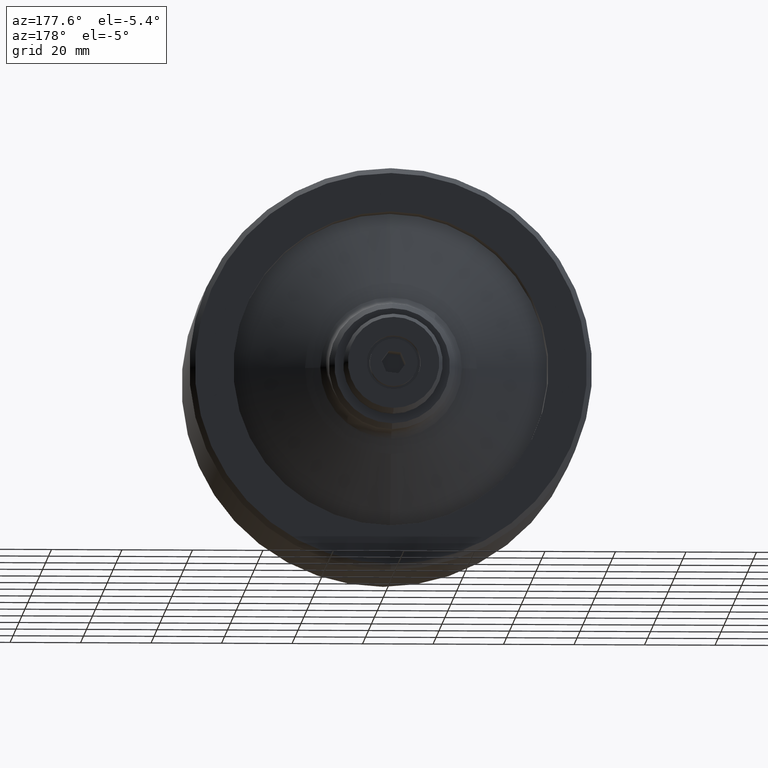
[diagram: clean part render]
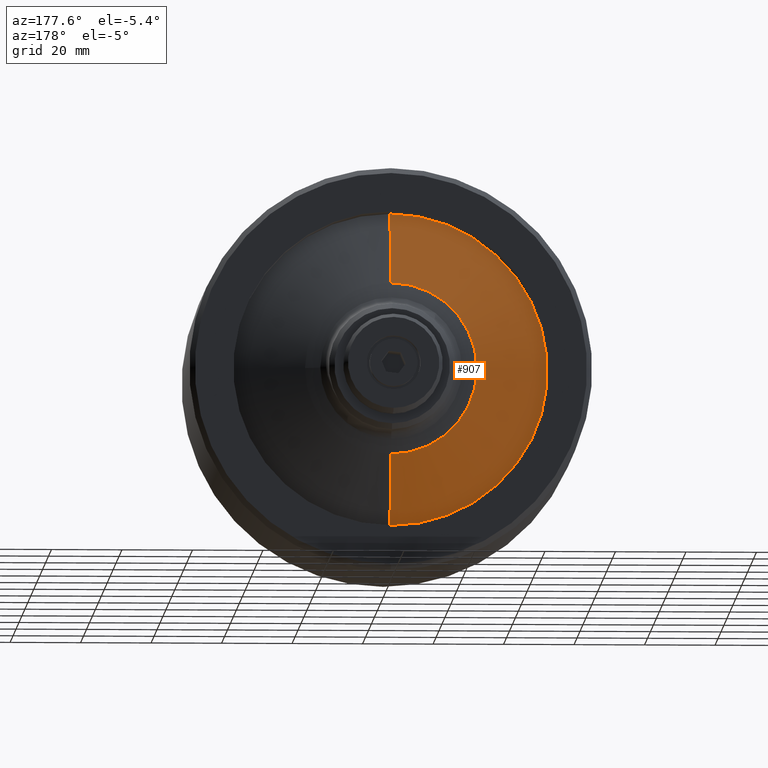
[diagram: same view with one face highlighted and labeled with its STEP entity id]
A machine part, auxiliary view. The second image highlights one B-rep face of the part: STEP entity #907.
In plain terms, the highlighted conical surface has half-angle 69.916 deg.
Its self-contained STEP definition (entity closure, byte-faithful):
#44 = CIRCLE ( 'NONE', #57, 0.9600000000000014100 ) ;
#52 = AXIS2_PLACEMENT_3D ( 'NONE', #1283, #1285, #1286 ) ;
#53 = CIRCLE ( 'NONE', #52, 0.9600000000000014100 ) ;
#57 = AXIS2_PLACEMENT_3D ( 'NONE', #1296, #1297, #1298 ) ;
#60 = AXIS2_PLACEMENT_3D ( 'NONE', #1409, #1410, #1411 ) ;
#95 = CIRCLE ( 'NONE', #60, 1.759875172363767800 ) ;
#232 = AXIS2_PLACEMENT_3D ( 'NONE', #1803, #1804, #1805 ) ;
#233 = CONICAL_SURFACE ( 'NONE', #232, 1.759875172363767800, 1.220263574788735600 ) ;
#415 = EDGE_CURVE ( 'NONE', #2543, #2540, #2739, .T. ) ;
#490 = EDGE_CURVE ( 'NONE', #2544, #2541, #2775, .T. ) ;
#538 = EDGE_CURVE ( 'NONE', #2543, #2562, #53, .T. ) ;
#547 = EDGE_CURVE ( 'NONE', #2562, #2544, #44, .T. ) ;
#609 = EDGE_CURVE ( 'NONE', #2540, #2541, #95, .T. ) ;
#697 = VECTOR ( 'NONE', #952, 39.37007874015748900 ) ;
#744 = VECTOR ( 'NONE', #1103, 39.37007874015748900 ) ;
#907 = ADVANCED_FACE ( 'NONE', ( #2896 ), #233, .T. ) ;
#951 = CARTESIAN_POINT ( 'NONE',  ( 2.155225496734184700E-016, 4.122539759987081900, 1.759875172363767800 ) ) ;
#952 = DIRECTION ( 'NONE',  ( 1.150175904890944400E-016, -0.3433982114676477100, 0.9391899000526042800 ) ) ;
#1102 = CARTESIAN_POINT ( 'NONE',  ( 0.0000000000000000000, 4.122539759987081900, -1.759875172363767800 ) ) ;
#1103 = DIRECTION ( 'NONE',  ( 0.0000000000000000000, -0.3433982114676477100, -0.9391899000526042800 ) ) ;
#1283 = CARTESIAN_POINT ( 'NONE',  ( 0.0000000000000000000, 4.415000000000000000, 0.0000000000000000000 ) ) ;
#1285 = DIRECTION ( 'NONE',  ( 0.0000000000000000000, -1.000000000000000000, 0.0000000000000000000 ) ) ;
#1286 = DIRECTION ( 'NONE',  ( 0.0000000000000000000, 0.0000000000000000000, -1.000000000000000000 ) ) ;
#1296 = CARTESIAN_POINT ( 'NONE',  ( 0.0000000000000000000, 4.415000000000000000, 0.0000000000000000000 ) ) ;
#1297 = DIRECTION ( 'NONE',  ( 0.0000000000000000000, -1.000000000000000000, 0.0000000000000000000 ) ) ;
#1298 = DIRECTION ( 'NONE',  ( 0.0000000000000000000, 0.0000000000000000000, -1.000000000000000000 ) ) ;
#1409 = CARTESIAN_POINT ( 'NONE',  ( 0.0000000000000000000, 4.122539759987081900, 0.0000000000000000000 ) ) ;
#1410 = DIRECTION ( 'NONE',  ( 0.0000000000000000000, -1.000000000000000000, 0.0000000000000000000 ) ) ;
#1411 = DIRECTION ( 'NONE',  ( 0.0000000000000000000, 0.0000000000000000000, -1.000000000000000000 ) ) ;
#1803 = CARTESIAN_POINT ( 'NONE',  ( 0.0000000000000000000, 4.122539759987081900, 0.0000000000000000000 ) ) ;
#1804 = DIRECTION ( 'NONE',  ( 0.0000000000000000000, -1.000000000000000000, 0.0000000000000000000 ) ) ;
#1805 = DIRECTION ( 'NONE',  ( 0.0000000000000000000, 0.0000000000000000000, -1.000000000000000000 ) ) ;
#2136 = CARTESIAN_POINT ( 'NONE',  ( 2.155225496734184700E-016, 4.122539759987081900, 1.759875172363767800 ) ) ;
#2137 = CARTESIAN_POINT ( 'NONE',  ( 0.0000000000000000000, 4.122539759987081900, -1.759875172363767800 ) ) ;
#2139 = CARTESIAN_POINT ( 'NONE',  ( 1.665443211957822800E-016, 4.415000000000000000, 0.9600000000000014100 ) ) ;
#2140 = CARTESIAN_POINT ( 'NONE',  ( 0.0000000000000000000, 4.415000000000000000, -0.9600000000000014100 ) ) ;
#2158 = CARTESIAN_POINT ( 'NONE',  ( -0.9599999999999997400, 4.415000000000000000, -1.175660927181462900E-016 ) ) ;
#2242 = EDGE_LOOP ( 'NONE', ( #2263, #2264, #2265, #2262, #2266 ) ) ;
#2262 = ORIENTED_EDGE ( 'NONE', *, *, #490, .T. ) ;
#2263 = ORIENTED_EDGE ( 'NONE', *, *, #415, .F. ) ;
#2264 = ORIENTED_EDGE ( 'NONE', *, *, #538, .T. ) ;
#2265 = ORIENTED_EDGE ( 'NONE', *, *, #547, .T. ) ;
#2266 = ORIENTED_EDGE ( 'NONE', *, *, #609, .F. ) ;
#2540 = VERTEX_POINT ( 'NONE', #2136 ) ;
#2541 = VERTEX_POINT ( 'NONE', #2137 ) ;
#2543 = VERTEX_POINT ( 'NONE', #2139 ) ;
#2544 = VERTEX_POINT ( 'NONE', #2140 ) ;
#2562 = VERTEX_POINT ( 'NONE', #2158 ) ;
#2739 = LINE ( 'NONE', #951, #697 ) ;
#2775 = LINE ( 'NONE', #1102, #744 ) ;
#2896 = FACE_OUTER_BOUND ( 'NONE', #2242, .T. ) ;